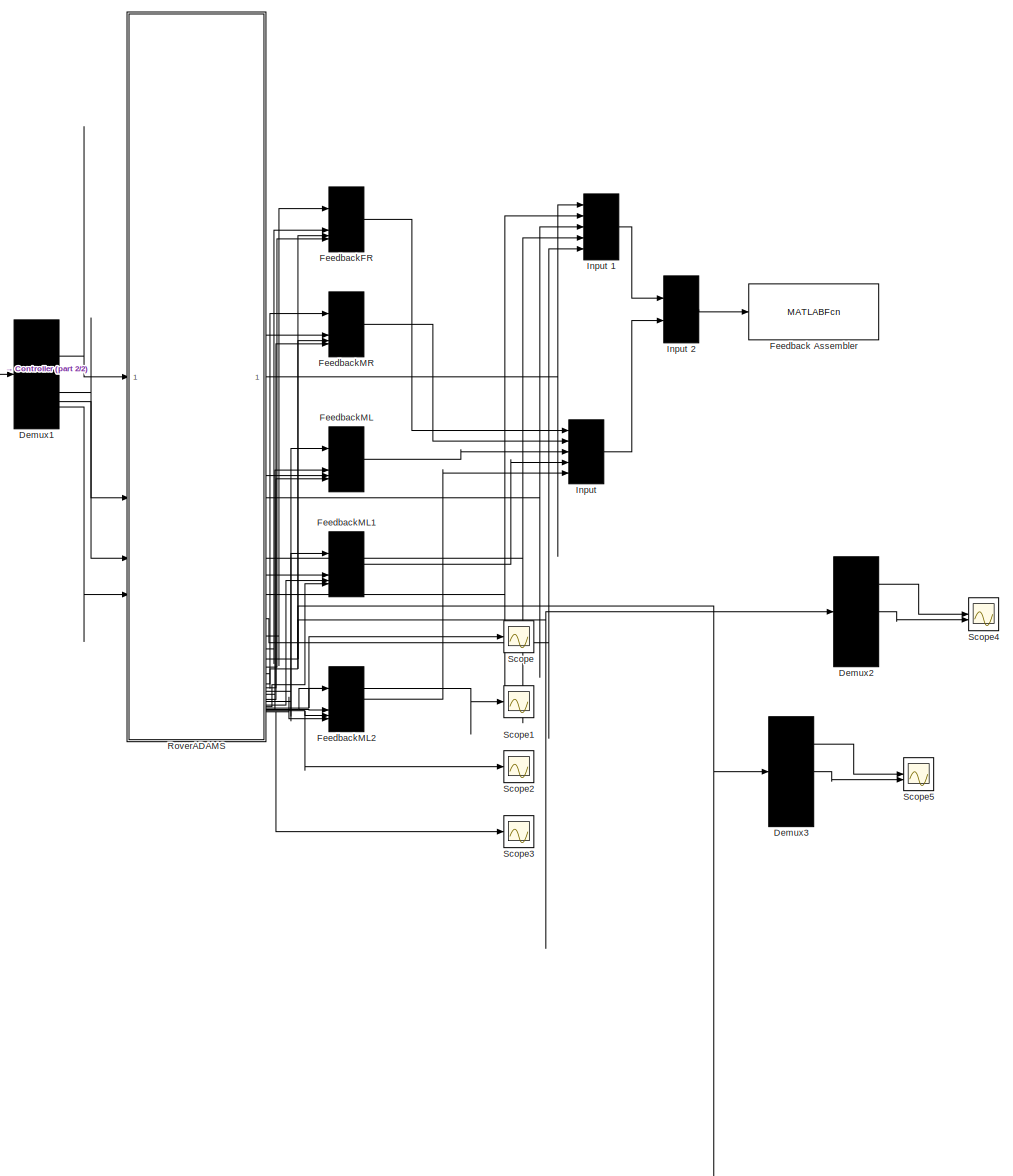
[diagram: root canvas - part 1/2, center side, full height]
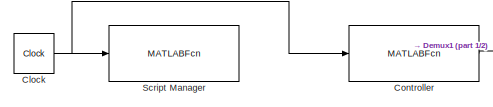
[diagram: root canvas - part 2/2, top left region]
MODEL slx_c310efbba423
KIND model
CONFIG AbsTol = auto
CONFIG EnableMultiTasking = off
CONFIG FixedStep = 0.0002
CONFIG MaxStep = auto
CONFIG MinStep = auto
CONFIG RelTol = 1e-3
CONFIG SampleTimeConstraint = Unconstrained
CONFIG SolverName = ode4
CONFIG StartTime = 0.0
CONFIG StopTime = 10
BLOCK [Clock] Clock
BLOCK [MATLABFcn] Controller
  MATLABFcn = roverControllerScript(u)
  OutputDimensions = 16
BLOCK [Demux] Demux1
  DisplayOption = none
BLOCK [Demux] Demux2
  DisplayOption = none
  Outputs = 3
BLOCK [Demux] Demux3
  DisplayOption = none
  Outputs = 3
BLOCK [MATLABFcn] Feedback Assembler
  MATLABFcn = stateWatcher(u(1:3),u(4:6),u(7:9),u(10:12),u(13:15),u(16:27),u(28:39),u(40:51),u(52:63),u(64:75))
  OutputDimensions = 0
BLOCK [Mux] FeedbackFR
BLOCK [Mux] FeedbackML
BLOCK [Mux] FeedbackML1
BLOCK [Mux] FeedbackML2
BLOCK [Mux] FeedbackMR
BLOCK [Mux] Input 
  Inputs = 5
BLOCK [Mux] Input 1
  Inputs = 5
BLOCK [Mux] Input 2
  Inputs = 2
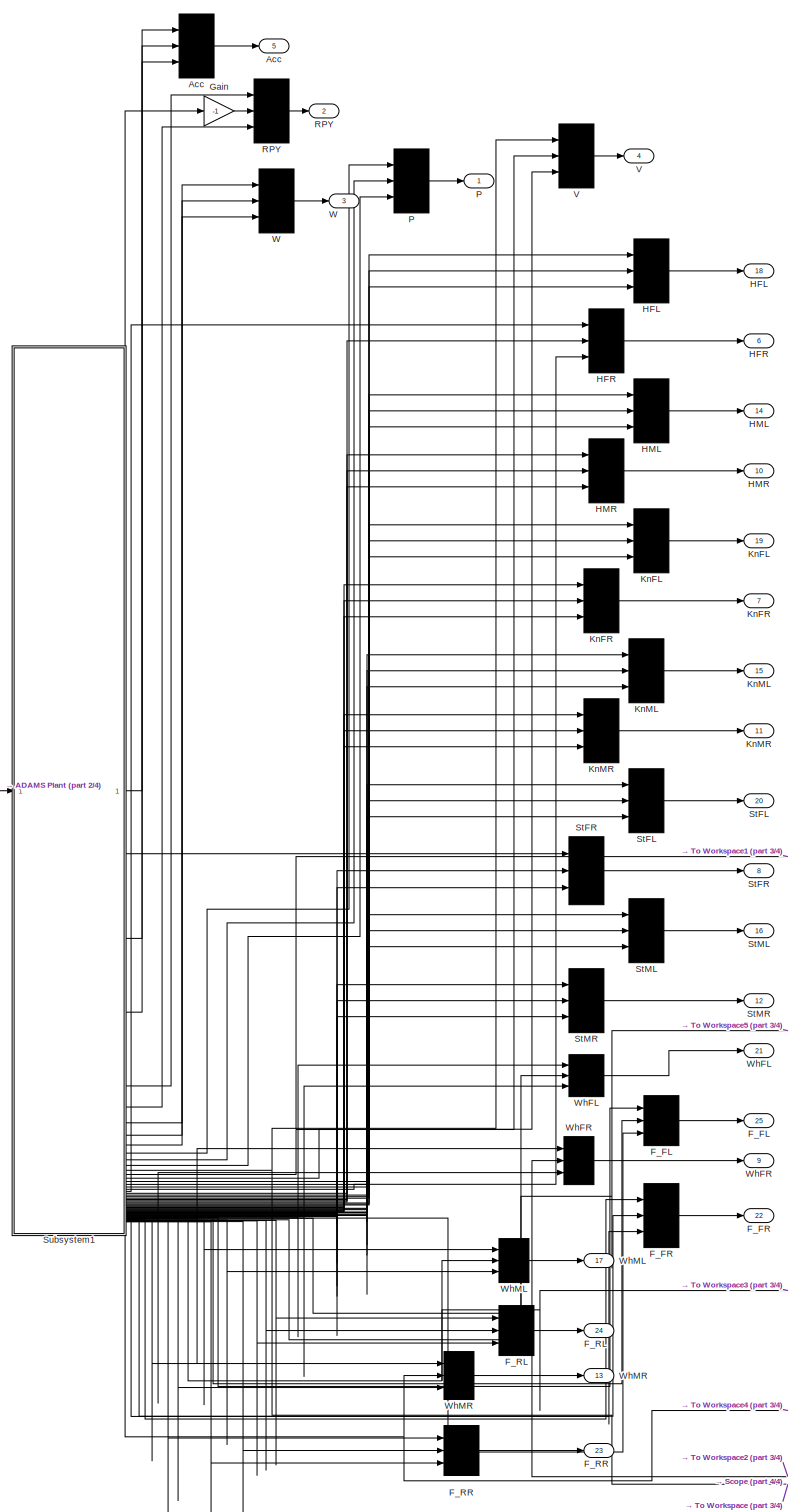
[diagram: RoverADAMS - part 1/4, center side, full height]
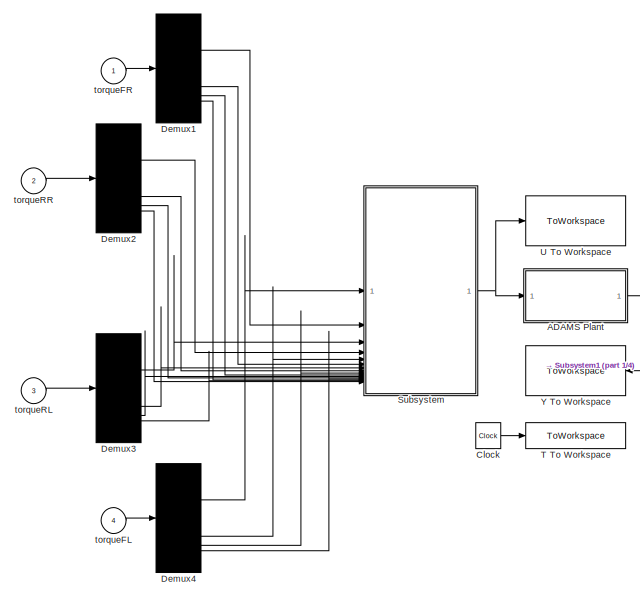
[diagram: RoverADAMS - part 2/4, middle left region]
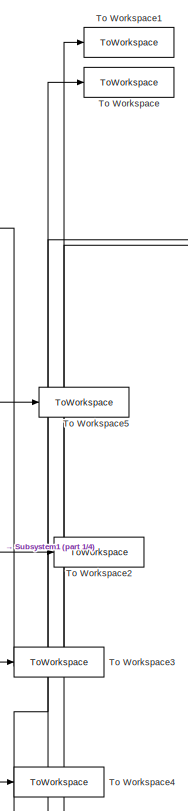
[diagram: RoverADAMS - part 3/4, bottom right region]
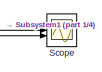
[diagram: RoverADAMS - part 4/4, middle right region]
BLOCK [SubSystem] RoverADAMS
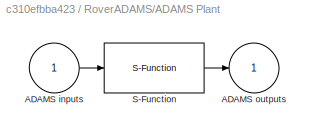
BLOCK [SubSystem] RoverADAMS/ADAMS Plant
  InitFcn = clear mex
  LoadFcn = %check based on dialog box setting for when setting by popup menu                                             \nif exist('ADAMS_solver_type')                                                                                 \n  if strcmp(ADAMS_solver_type,'C++')                                                                          \n    set_param(gcb,'exetyp','C++');                                 ...<+4486ch>
  OpenFcn = open_system(gcb,'mask')                                                                                                                          \nif not(exist('set_some_params_states'))                                                                                                          \n                                                                                                            ...<+625ch>
BLOCK [Inport] RoverADAMS/ADAMS Plant/ADAMS inputs
BLOCK [Outport] RoverADAMS/ADAMS Plant/ADAMS outputs
  InitialOutput = 0
BLOCK [S-Function] RoverADAMS/ADAMS Plant/S-Function
  EnableBusSupport = off
  FunctionName = adams_plant
  Parameters = exevie,exesol,stat,outfil,nampre,o_rate,nam_in,namout,dft,modsim,modani,dt_out,inicmd,exetyp,comtyp,ada_host, workdir,pin_interp_order,pout_extrap_order,pin_extrap_order,pout_interp_order,simulink_lead_cosim
  SFcnIsStateOwnerBlock = off
  SFunctionDeploymentMode = off
  StopFcn = clear mex
BLOCK [Outport] RoverADAMS/Acc
  Port = 5
BLOCK [Mux] RoverADAMS/Acc 
  Inputs = 3
BLOCK [Clock] RoverADAMS/Clock
  Commented = on
BLOCK [Demux] RoverADAMS/Demux1
  DisplayOption = none
BLOCK [Demux] RoverADAMS/Demux2
  DisplayOption = none
BLOCK [Demux] RoverADAMS/Demux3
  DisplayOption = none
BLOCK [Demux] RoverADAMS/Demux4
  DisplayOption = none
BLOCK [Outport] RoverADAMS/F_FL
  Port = 25
BLOCK [Mux] RoverADAMS/F_FL 
  Inputs = 3
BLOCK [Outport] RoverADAMS/F_FR
  Port = 22
BLOCK [Mux] RoverADAMS/F_FR 
  Inputs = 3
BLOCK [Outport] RoverADAMS/F_RL
  Port = 24
BLOCK [Mux] RoverADAMS/F_RL 
  Inputs = 3
BLOCK [Outport] RoverADAMS/F_RR
  Port = 23
BLOCK [Mux] RoverADAMS/F_RR 
  Inputs = 3
BLOCK [Gain] RoverADAMS/Gain
  Gain = -1
BLOCK [Outport] RoverADAMS/HFL
  Port = 18
BLOCK [Mux] RoverADAMS/HFL 
  Inputs = 3
BLOCK [Outport] RoverADAMS/HFR
  Port = 6
BLOCK [Mux] RoverADAMS/HFR 
  Inputs = 3
BLOCK [Outport] RoverADAMS/HML
  Port = 14
BLOCK [Mux] RoverADAMS/HML 
  Inputs = 3
BLOCK [Outport] RoverADAMS/HMR
  Port = 10
BLOCK [Mux] RoverADAMS/HMR 
  Inputs = 3
BLOCK [Outport] RoverADAMS/KnFL
  Port = 19
BLOCK [Mux] RoverADAMS/KnFL 
  Inputs = 3
BLOCK [Outport] RoverADAMS/KnFR
  Port = 7
BLOCK [Mux] RoverADAMS/KnFR 
  Inputs = 3
BLOCK [Outport] RoverADAMS/KnML
  Port = 15
BLOCK [Mux] RoverADAMS/KnML 
  Inputs = 3
BLOCK [Outport] RoverADAMS/KnMR
  Port = 11
BLOCK [Mux] RoverADAMS/KnMR 
  Inputs = 3
BLOCK [Outport] RoverADAMS/P
BLOCK [Mux] RoverADAMS/P 
  Inputs = 3
BLOCK [Outport] RoverADAMS/RPY
  Port = 2
BLOCK [Mux] RoverADAMS/RPY 
  Inputs = 3
BLOCK [Scope] RoverADAMS/Scope
  Floating = off
  NumInputPorts = 2
  ScopeSpecificationString = Simulink.scopes.TimeScopeBlockCfg('CurrentConfiguration', extmgr.ConfigurationSet(extmgr.Configuration('Core','General UI',true),extmgr.Configuration('Core','Source UI',true),extmgr.Configuration('Sources','WiredSimulink',true,'DataLoggingVariableName','ScopeData3'),extmgr.Configuration('Visuals','Time Domain',true,'SerializedDisplays',{struct('MinYLimReal','-0.76514','MaxYLimReal','0.09741','YLab...<+2097ch>
BLOCK [Outport] RoverADAMS/StFL
  Port = 20
BLOCK [Mux] RoverADAMS/StFL 
  Inputs = 3
BLOCK [Outport] RoverADAMS/StFR
  Port = 8
BLOCK [Mux] RoverADAMS/StFR 
  Inputs = 3
BLOCK [Outport] RoverADAMS/StML
  Port = 16
BLOCK [Mux] RoverADAMS/StML 
  Inputs = 3
BLOCK [Outport] RoverADAMS/StMR
  Port = 12
BLOCK [Mux] RoverADAMS/StMR 
  Inputs = 3
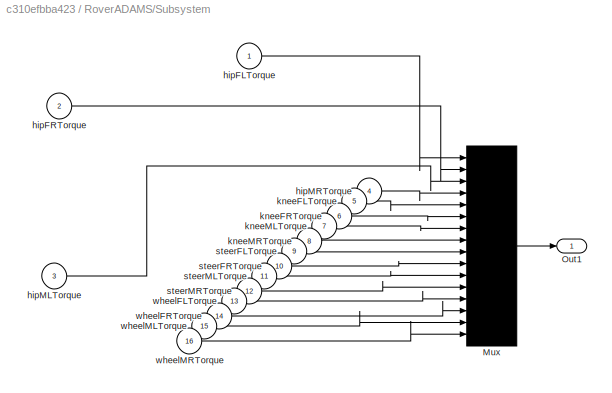
BLOCK [SubSystem] RoverADAMS/Subsystem
BLOCK [Mux] RoverADAMS/Subsystem/Mux
  Inputs = 16
BLOCK [Outport] RoverADAMS/Subsystem/Out1
BLOCK [Inport] RoverADAMS/Subsystem/hipFLTorque  
BLOCK [Inport] RoverADAMS/Subsystem/hipFRTorque  
  Port = 2
BLOCK [Inport] RoverADAMS/Subsystem/hipMLTorque  
  Port = 3
BLOCK [Inport] RoverADAMS/Subsystem/hipMRTorque  
  Port = 4
BLOCK [Inport] RoverADAMS/Subsystem/kneeFLTorque 
  Port = 5
BLOCK [Inport] RoverADAMS/Subsystem/kneeFRTorque 
  Port = 6
BLOCK [Inport] RoverADAMS/Subsystem/kneeMLTorque 
  Port = 7
BLOCK [Inport] RoverADAMS/Subsystem/kneeMRTorque 
  Port = 8
BLOCK [Inport] RoverADAMS/Subsystem/steerFLTorque
  Port = 9
BLOCK [Inport] RoverADAMS/Subsystem/steerFRTorque
  Port = 10
BLOCK [Inport] RoverADAMS/Subsystem/steerMLTorque
  Port = 11
BLOCK [Inport] RoverADAMS/Subsystem/steerMRTorque
  Port = 12
BLOCK [Inport] RoverADAMS/Subsystem/wheelFLTorque
  Port = 13
BLOCK [Inport] RoverADAMS/Subsystem/wheelFRTorque
  Port = 14
BLOCK [Inport] RoverADAMS/Subsystem/wheelMLTorque
  Port = 15
BLOCK [Inport] RoverADAMS/Subsystem/wheelMRTorque
  Port = 16
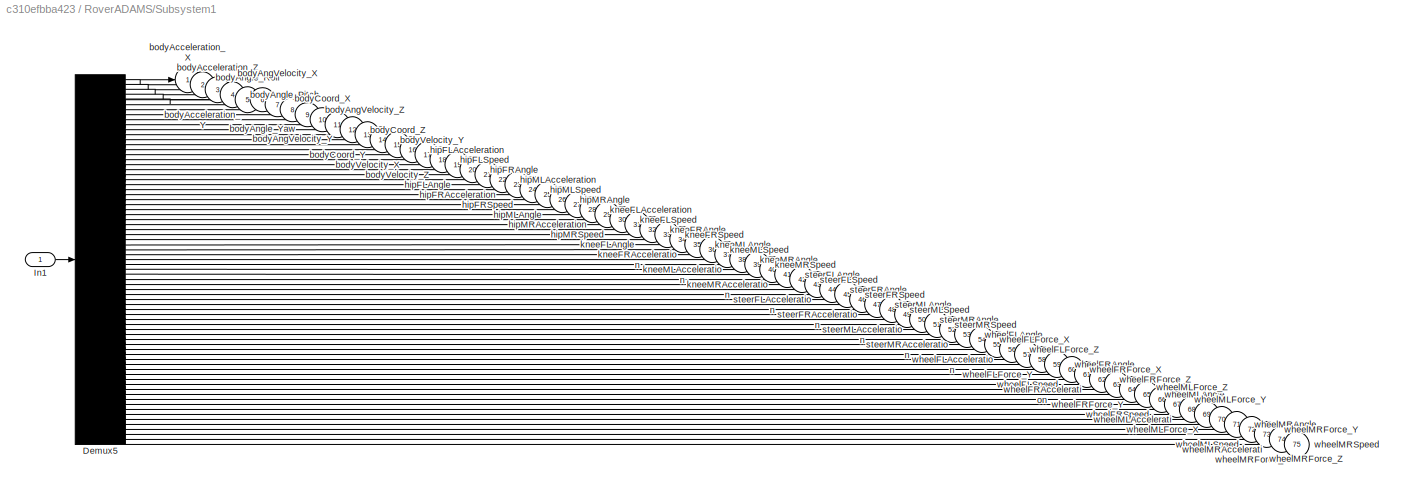
BLOCK [SubSystem] RoverADAMS/Subsystem1
BLOCK [Demux] RoverADAMS/Subsystem1/Demux5
  DisplayOption = none
  Outputs = 75
BLOCK [Inport] RoverADAMS/Subsystem1/In1
BLOCK [Outport] RoverADAMS/Subsystem1/bodyAcceleration_X 
BLOCK [Outport] RoverADAMS/Subsystem1/bodyAcceleration_Y 
  Port = 2
BLOCK [Outport] RoverADAMS/Subsystem1/bodyAcceleration_Z 
  Port = 3
BLOCK [Outport] RoverADAMS/Subsystem1/bodyAngVelocity_X  
  Port = 7
BLOCK [Outport] RoverADAMS/Subsystem1/bodyAngVelocity_Y  
  Port = 8
BLOCK [Outport] RoverADAMS/Subsystem1/bodyAngVelocity_Z  
  Port = 9
BLOCK [Outport] RoverADAMS/Subsystem1/bodyAngle_Pitch    
  Port = 4
BLOCK [Outport] RoverADAMS/Subsystem1/bodyAngle_Roll     
  Port = 5
BLOCK [Outport] RoverADAMS/Subsystem1/bodyAngle_Yaw      
  Port = 6
BLOCK [Outport] RoverADAMS/Subsystem1/bodyCoord_X        
  Port = 10
BLOCK [Outport] RoverADAMS/Subsystem1/bodyCoord_Y        
  Port = 11
BLOCK [Outport] RoverADAMS/Subsystem1/bodyCoord_Z        
  Port = 12
BLOCK [Outport] RoverADAMS/Subsystem1/bodyVelocity_X     
  Port = 13
BLOCK [Outport] RoverADAMS/Subsystem1/bodyVelocity_Y     
  Port = 14
BLOCK [Outport] RoverADAMS/Subsystem1/bodyVelocity_Z     
  Port = 15
BLOCK [Outport] RoverADAMS/Subsystem1/hipFLAcceleration  
  Port = 16
BLOCK [Outport] RoverADAMS/Subsystem1/hipFLAngle         
  Port = 17
BLOCK [Outport] RoverADAMS/Subsystem1/hipFLSpeed         
  Port = 18
BLOCK [Outport] RoverADAMS/Subsystem1/hipFRAcceleration  
  Port = 19
BLOCK [Outport] RoverADAMS/Subsystem1/hipFRAngle         
  Port = 20
BLOCK [Outport] RoverADAMS/Subsystem1/hipFRSpeed         
  Port = 21
BLOCK [Outport] RoverADAMS/Subsystem1/hipMLAcceleration  
  Port = 22
BLOCK [Outport] RoverADAMS/Subsystem1/hipMLAngle         
  Port = 23
BLOCK [Outport] RoverADAMS/Subsystem1/hipMLSpeed         
  Port = 24
BLOCK [Outport] RoverADAMS/Subsystem1/hipMRAcceleration  
  Port = 25
BLOCK [Outport] RoverADAMS/Subsystem1/hipMRAngle         
  Port = 26
BLOCK [Outport] RoverADAMS/Subsystem1/hipMRSpeed         
  Port = 27
BLOCK [Outport] RoverADAMS/Subsystem1/kneeFLAcceleration 
  Port = 28
BLOCK [Outport] RoverADAMS/Subsystem1/kneeFLAngle        
  Port = 29
BLOCK [Outport] RoverADAMS/Subsystem1/kneeFLSpeed        
  Port = 30
BLOCK [Outport] RoverADAMS/Subsystem1/kneeFRAcceleration 
  Port = 31
BLOCK [Outport] RoverADAMS/Subsystem1/kneeFRAngle        
  Port = 32
BLOCK [Outport] RoverADAMS/Subsystem1/kneeFRSpeed        
  Port = 33
BLOCK [Outport] RoverADAMS/Subsystem1/kneeMLAcceleration 
  Port = 34
BLOCK [Outport] RoverADAMS/Subsystem1/kneeMLAngle        
  Port = 35
BLOCK [Outport] RoverADAMS/Subsystem1/kneeMLSpeed        
  Port = 36
BLOCK [Outport] RoverADAMS/Subsystem1/kneeMRAcceleration 
  Port = 37
BLOCK [Outport] RoverADAMS/Subsystem1/kneeMRAngle        
  Port = 38
BLOCK [Outport] RoverADAMS/Subsystem1/kneeMRSpeed        
  Port = 39
BLOCK [Outport] RoverADAMS/Subsystem1/steerFLAcceleration
  Port = 40
BLOCK [Outport] RoverADAMS/Subsystem1/steerFLAngle       
  Port = 41
BLOCK [Outport] RoverADAMS/Subsystem1/steerFLSpeed       
  Port = 42
BLOCK [Outport] RoverADAMS/Subsystem1/steerFRAcceleration
  Port = 43
BLOCK [Outport] RoverADAMS/Subsystem1/steerFRAngle       
  Port = 44
BLOCK [Outport] RoverADAMS/Subsystem1/steerFRSpeed       
  Port = 45
BLOCK [Outport] RoverADAMS/Subsystem1/steerMLAcceleration
  Port = 46
BLOCK [Outport] RoverADAMS/Subsystem1/steerMLAngle       
  Port = 47
BLOCK [Outport] RoverADAMS/Subsystem1/steerMLSpeed       
  Port = 48
BLOCK [Outport] RoverADAMS/Subsystem1/steerMRAcceleration
  Port = 49
BLOCK [Outport] RoverADAMS/Subsystem1/steerMRAngle       
  Port = 50
BLOCK [Outport] RoverADAMS/Subsystem1/steerMRSpeed       
  Port = 51
BLOCK [Outport] RoverADAMS/Subsystem1/wheelFLAcceleration
  Port = 52
BLOCK [Outport] RoverADAMS/Subsystem1/wheelFLAngle       
  Port = 53
BLOCK [Outport] RoverADAMS/Subsystem1/wheelFLForce_X     
  Port = 54
BLOCK [Outport] RoverADAMS/Subsystem1/wheelFLForce_Y     
  Port = 55
BLOCK [Outport] RoverADAMS/Subsystem1/wheelFLForce_Z     
  Port = 56
BLOCK [Outport] RoverADAMS/Subsystem1/wheelFLSpeed       
  Port = 57
BLOCK [Outport] RoverADAMS/Subsystem1/wheelFRAcceleration
  Port = 58
BLOCK [Outport] RoverADAMS/Subsystem1/wheelFRAngle       
  Port = 59
BLOCK [Outport] RoverADAMS/Subsystem1/wheelFRForce_X     
  Port = 60
BLOCK [Outport] RoverADAMS/Subsystem1/wheelFRForce_Y     
  Port = 61
BLOCK [Outport] RoverADAMS/Subsystem1/wheelFRForce_Z     
  Port = 62
BLOCK [Outport] RoverADAMS/Subsystem1/wheelFRSpeed       
  Port = 63
BLOCK [Outport] RoverADAMS/Subsystem1/wheelMLAcceleration
  Port = 64
BLOCK [Outport] RoverADAMS/Subsystem1/wheelMLAngle       
  Port = 65
BLOCK [Outport] RoverADAMS/Subsystem1/wheelMLForce_X     
  Port = 66
BLOCK [Outport] RoverADAMS/Subsystem1/wheelMLForce_Y     
  Port = 67
BLOCK [Outport] RoverADAMS/Subsystem1/wheelMLForce_Z     
  Port = 68
BLOCK [Outport] RoverADAMS/Subsystem1/wheelMLSpeed       
  Port = 69
BLOCK [Outport] RoverADAMS/Subsystem1/wheelMRAcceleration
  Port = 70
BLOCK [Outport] RoverADAMS/Subsystem1/wheelMRAngle       
  Port = 71
BLOCK [Outport] RoverADAMS/Subsystem1/wheelMRForce_X     
  Port = 72
BLOCK [Outport] RoverADAMS/Subsystem1/wheelMRForce_Y     
  Port = 73
BLOCK [Outport] RoverADAMS/Subsystem1/wheelMRForce_Z     
  Port = 74
BLOCK [Outport] RoverADAMS/Subsystem1/wheelMRSpeed       
  Port = 75
BLOCK [ToWorkspace] RoverADAMS/T To Workspace
  Commented = on
  MaxDataPoints = 500
  SampleTime = 0.1
  VariableName = ADAMS_tout
BLOCK [ToWorkspace] RoverADAMS/To Workspace
  FixptAsFi = on
  MaxDataPoints = inf
  SampleTime = -1
  SaveFormat = Timeseries
  VariableName = vX
BLOCK [ToWorkspace] RoverADAMS/To Workspace1
  FixptAsFi = on
  MaxDataPoints = inf
  SampleTime = -1
  SaveFormat = Timeseries
  VariableName = vY
BLOCK [ToWorkspace] RoverADAMS/To Workspace2
  FixptAsFi = on
  MaxDataPoints = inf
  SampleTime = -1
  SaveFormat = Timeseries
  VariableName = wFR
BLOCK [ToWorkspace] RoverADAMS/To Workspace3
  FixptAsFi = on
  MaxDataPoints = inf
  SampleTime = -1
  SaveFormat = Timeseries
  VariableName = wRL
BLOCK [ToWorkspace] RoverADAMS/To Workspace4
  FixptAsFi = on
  MaxDataPoints = inf
  SampleTime = -1
  SaveFormat = Timeseries
  VariableName = wRR
BLOCK [ToWorkspace] RoverADAMS/To Workspace5
  FixptAsFi = on
  MaxDataPoints = inf
  SampleTime = -1
  SaveFormat = Timeseries
  VariableName = wFL
BLOCK [ToWorkspace] RoverADAMS/U To Workspace
  Commented = on
  MaxDataPoints = 500
  SampleTime = 0.1
  VariableName = ADAMS_uout
BLOCK [Outport] RoverADAMS/V
  Port = 4
BLOCK [Mux] RoverADAMS/V 
  Inputs = 3
BLOCK [Outport] RoverADAMS/W
  Port = 3
BLOCK [Mux] RoverADAMS/W 
  Inputs = 3
BLOCK [Outport] RoverADAMS/WhFL
  Port = 21
BLOCK [Mux] RoverADAMS/WhFL 
  Inputs = 3
BLOCK [Outport] RoverADAMS/WhFR
  Port = 9
BLOCK [Mux] RoverADAMS/WhFR 
  Inputs = 3
BLOCK [Outport] RoverADAMS/WhML
  Port = 17
BLOCK [Mux] RoverADAMS/WhML 
  Inputs = 3
BLOCK [Outport] RoverADAMS/WhMR
  Port = 13
BLOCK [Mux] RoverADAMS/WhMR 
  Inputs = 3
BLOCK [ToWorkspace] RoverADAMS/Y To Workspace
  Commented = on
  MaxDataPoints = 500
  SampleTime = 0.1
  VariableName = ADAMS_yout
BLOCK [Inport] RoverADAMS/torqueFL
  Port = 4
BLOCK [Inport] RoverADAMS/torqueFR
BLOCK [Inport] RoverADAMS/torqueRL
  Port = 3
BLOCK [Inport] RoverADAMS/torqueRR
  Port = 2
BLOCK [Scope] Scope
  Floating = off
  NumInputPorts = 1
  ScopeSpecificationString = Simulink.scopes.TimeScopeBlockCfg('CurrentConfiguration', extmgr.ConfigurationSet(extmgr.Configuration('Core','General UI',true),extmgr.Configuration('Core','Source UI',true),extmgr.Configuration('Sources','WiredSimulink',true),extmgr.Configuration('Visuals','Time Domain',true,'SerializedDisplays',{struct('MinYLimReal','-82.22078','MaxYLimReal','514.30419','YLabelReal','','MinYLimMag','0.00000','M...<+1425ch>
BLOCK [Scope] Scope1
  Floating = off
  NumInputPorts = 1
  ScopeSpecificationString = Simulink.scopes.TimeScopeBlockCfg('CurrentConfiguration', extmgr.ConfigurationSet(extmgr.Configuration('Core','General UI',true),extmgr.Configuration('Core','Source UI',true),extmgr.Configuration('Sources','WiredSimulink',true,'DataLoggingVariableName','ScopeData1'),extmgr.Configuration('Visuals','Time Domain',true,'SerializedDisplays',{struct('MinYLimReal','-137.53784','MaxYLimReal','522.29018','...<+1500ch>
BLOCK [Scope] Scope2
  Floating = off
  NumInputPorts = 1
  ScopeSpecificationString = Simulink.scopes.TimeScopeBlockCfg('CurrentConfiguration', extmgr.ConfigurationSet(extmgr.Configuration('Core','General UI',true),extmgr.Configuration('Core','Source UI',true),extmgr.Configuration('Sources','WiredSimulink',true,'DataLoggingVariableName','ScopeData2'),extmgr.Configuration('Visuals','Time Domain',true,'SerializedDisplays',{struct('MinYLimReal','-1.00000','MaxYLimReal','1.00000','YLab...<+1410ch>
BLOCK [Scope] Scope3
  Floating = off
  NumInputPorts = 1
  ScopeSpecificationString = Simulink.scopes.TimeScopeBlockCfg('CurrentConfiguration', extmgr.ConfigurationSet(extmgr.Configuration('Core','General UI',true),extmgr.Configuration('Core','Source UI',true),extmgr.Configuration('Sources','WiredSimulink',true,'DataLoggingVariableName','ScopeData3'),extmgr.Configuration('Visuals','Time Domain',true),extmgr.Configuration('Tools','Plot Navigation',true),extmgr.Configuration('Tools',...<+40ch>
BLOCK [Scope] Scope4
  Floating = off
  NumInputPorts = 2
  ScopeSpecificationString = Simulink.scopes.TimeScopeBlockCfg('CurrentConfiguration', extmgr.ConfigurationSet(extmgr.Configuration('Core','General UI',true),extmgr.Configuration('Core','Source UI',true),extmgr.Configuration('Sources','WiredSimulink',true,'DataLoggingVariableName','ScopeData1'),extmgr.Configuration('Visuals','Time Domain',true,'SerializedDisplays',{struct('MinYLimReal','-0.31523','MaxYLimReal','0.03531','YLab...<+2209ch>
BLOCK [Scope] Scope5
  Floating = off
  NumInputPorts = 2
  ScopeSpecificationString = Simulink.scopes.TimeScopeBlockCfg('CurrentConfiguration', extmgr.ConfigurationSet(extmgr.Configuration('Core','General UI',true),extmgr.Configuration('Core','Source UI',true),extmgr.Configuration('Sources','WiredSimulink',true,'DataLoggingVariableName','ScopeData2'),extmgr.Configuration('Visuals','Time Domain',true,'SerializedDisplays',{struct('MinYLimReal','-0.07335','MaxYLimReal','0.09236','YLab...<+2185ch>
BLOCK [MATLABFcn] Script Manager
  MATLABFcn = roverManager(u(1))
  OutputDimensions = 0
NET Clock:1 -> Controller:1, Script Manager:1
LINE Controller:1 -> Demux1:1
LINE Demux1:1 -> RoverADAMS:1
LINE Demux1:2 -> RoverADAMS:2
LINE Demux1:3 -> RoverADAMS:3
LINE Demux1:4 -> RoverADAMS:4
LINE Demux2:1 -> Scope4:1
LINE Demux2:2 -> Scope4:2
LINE Demux3:1 -> Scope5:1
LINE Demux3:2 -> Scope5:2
LINE FeedbackFR:1 -> Input :1
LINE FeedbackML1:1 -> Input :4
LINE FeedbackML2:1 -> Input :5
LINE FeedbackML:1 -> Input :3
LINE FeedbackMR:1 -> Input :2
LINE Input 1:1 -> Input 2:1
LINE Input 2:1 -> Feedback Assembler:1
LINE Input :1 -> Input 2:2
LINE RoverADAMS/ADAMS Plant/ADAMS inputs:1 -> RoverADAMS/ADAMS Plant/S-Function:1
LINE RoverADAMS/ADAMS Plant/S-Function:1 -> RoverADAMS/ADAMS Plant/ADAMS outputs:1
NET RoverADAMS/ADAMS Plant:1 -> RoverADAMS/Subsystem1:1, RoverADAMS/Y To Workspace:1
LINE RoverADAMS/Acc :1 -> RoverADAMS/Acc:1
LINE RoverADAMS/Clock:1 -> RoverADAMS/T To Workspace:1
LINE RoverADAMS/Demux1:1 -> RoverADAMS/Subsystem:2
LINE RoverADAMS/Demux1:2 -> RoverADAMS/Subsystem:6
LINE RoverADAMS/Demux1:3 -> RoverADAMS/Subsystem:10
LINE RoverADAMS/Demux1:4 -> RoverADAMS/Subsystem:14
LINE RoverADAMS/Demux2:1 -> RoverADAMS/Subsystem:4
LINE RoverADAMS/Demux2:2 -> RoverADAMS/Subsystem:8
LINE RoverADAMS/Demux2:3 -> RoverADAMS/Subsystem:12
LINE RoverADAMS/Demux2:4 -> RoverADAMS/Subsystem:16
LINE RoverADAMS/Demux3:1 -> RoverADAMS/Subsystem:3
LINE RoverADAMS/Demux3:2 -> RoverADAMS/Subsystem:7
LINE RoverADAMS/Demux3:3 -> RoverADAMS/Subsystem:11
LINE RoverADAMS/Demux3:4 -> RoverADAMS/Subsystem:15
LINE RoverADAMS/Demux4:1 -> RoverADAMS/Subsystem:1
LINE RoverADAMS/Demux4:2 -> RoverADAMS/Subsystem:5
LINE RoverADAMS/Demux4:3 -> RoverADAMS/Subsystem:9
LINE RoverADAMS/Demux4:4 -> RoverADAMS/Subsystem:13
LINE RoverADAMS/F_FL :1 -> RoverADAMS/F_FL:1
LINE RoverADAMS/F_FR :1 -> RoverADAMS/F_FR:1
LINE RoverADAMS/F_RL :1 -> RoverADAMS/F_RL:1
LINE RoverADAMS/F_RR :1 -> RoverADAMS/F_RR:1
LINE RoverADAMS/Gain:1 -> RoverADAMS/RPY :2
LINE RoverADAMS/HFL :1 -> RoverADAMS/HFL:1
LINE RoverADAMS/HFR :1 -> RoverADAMS/HFR:1
LINE RoverADAMS/HML :1 -> RoverADAMS/HML:1
LINE RoverADAMS/HMR :1 -> RoverADAMS/HMR:1
LINE RoverADAMS/KnFL :1 -> RoverADAMS/KnFL:1
LINE RoverADAMS/KnFR :1 -> RoverADAMS/KnFR:1
LINE RoverADAMS/KnML :1 -> RoverADAMS/KnML:1
LINE RoverADAMS/KnMR :1 -> RoverADAMS/KnMR:1
LINE RoverADAMS/P :1 -> RoverADAMS/P:1
LINE RoverADAMS/RPY :1 -> RoverADAMS/RPY:1
LINE RoverADAMS/StFL :1 -> RoverADAMS/StFL:1
LINE RoverADAMS/StFR :1 -> RoverADAMS/StFR:1
LINE RoverADAMS/StML :1 -> RoverADAMS/StML:1
LINE RoverADAMS/StMR :1 -> RoverADAMS/StMR:1
LINE RoverADAMS/Subsystem/Mux:1 -> RoverADAMS/Subsystem/Out1:1
LINE RoverADAMS/Subsystem/hipFLTorque  :1 -> RoverADAMS/Subsystem/Mux:1
LINE RoverADAMS/Subsystem/hipFRTorque  :1 -> RoverADAMS/Subsystem/Mux:2
LINE RoverADAMS/Subsystem/hipMLTorque  :1 -> RoverADAMS/Subsystem/Mux:3
LINE RoverADAMS/Subsystem/hipMRTorque  :1 -> RoverADAMS/Subsystem/Mux:4
LINE RoverADAMS/Subsystem/kneeFLTorque :1 -> RoverADAMS/Subsystem/Mux:5
LINE RoverADAMS/Subsystem/kneeFRTorque :1 -> RoverADAMS/Subsystem/Mux:6
LINE RoverADAMS/Subsystem/kneeMLTorque :1 -> RoverADAMS/Subsystem/Mux:7
LINE RoverADAMS/Subsystem/kneeMRTorque :1 -> RoverADAMS/Subsystem/Mux:8
LINE RoverADAMS/Subsystem/steerFLTorque:1 -> RoverADAMS/Subsystem/Mux:9
LINE RoverADAMS/Subsystem/steerFRTorque:1 -> RoverADAMS/Subsystem/Mux:10
LINE RoverADAMS/Subsystem/steerMLTorque:1 -> RoverADAMS/Subsystem/Mux:11
LINE RoverADAMS/Subsystem/steerMRTorque:1 -> RoverADAMS/Subsystem/Mux:12
LINE RoverADAMS/Subsystem/wheelFLTorque:1 -> RoverADAMS/Subsystem/Mux:13
LINE RoverADAMS/Subsystem/wheelFRTorque:1 -> RoverADAMS/Subsystem/Mux:14
LINE RoverADAMS/Subsystem/wheelMLTorque:1 -> RoverADAMS/Subsystem/Mux:15
LINE RoverADAMS/Subsystem/wheelMRTorque:1 -> RoverADAMS/Subsystem/Mux:16
LINE RoverADAMS/Subsystem1/Demux5:1 -> RoverADAMS/Subsystem1/bodyAcceleration_X :1
LINE RoverADAMS/Subsystem1/Demux5:10 -> RoverADAMS/Subsystem1/bodyCoord_X        :1
LINE RoverADAMS/Subsystem1/Demux5:11 -> RoverADAMS/Subsystem1/bodyCoord_Y        :1
LINE RoverADAMS/Subsystem1/Demux5:12 -> RoverADAMS/Subsystem1/bodyCoord_Z        :1
LINE RoverADAMS/Subsystem1/Demux5:13 -> RoverADAMS/Subsystem1/bodyVelocity_X     :1
LINE RoverADAMS/Subsystem1/Demux5:14 -> RoverADAMS/Subsystem1/bodyVelocity_Y     :1
LINE RoverADAMS/Subsystem1/Demux5:15 -> RoverADAMS/Subsystem1/bodyVelocity_Z     :1
LINE RoverADAMS/Subsystem1/Demux5:16 -> RoverADAMS/Subsystem1/hipFLAcceleration  :1
LINE RoverADAMS/Subsystem1/Demux5:17 -> RoverADAMS/Subsystem1/hipFLAngle         :1
LINE RoverADAMS/Subsystem1/Demux5:18 -> RoverADAMS/Subsystem1/hipFLSpeed         :1
LINE RoverADAMS/Subsystem1/Demux5:19 -> RoverADAMS/Subsystem1/hipFRAcceleration  :1
LINE RoverADAMS/Subsystem1/Demux5:2 -> RoverADAMS/Subsystem1/bodyAcceleration_Y :1
LINE RoverADAMS/Subsystem1/Demux5:20 -> RoverADAMS/Subsystem1/hipFRAngle         :1
LINE RoverADAMS/Subsystem1/Demux5:21 -> RoverADAMS/Subsystem1/hipFRSpeed         :1
LINE RoverADAMS/Subsystem1/Demux5:22 -> RoverADAMS/Subsystem1/hipMLAcceleration  :1
LINE RoverADAMS/Subsystem1/Demux5:23 -> RoverADAMS/Subsystem1/hipMLAngle         :1
LINE RoverADAMS/Subsystem1/Demux5:24 -> RoverADAMS/Subsystem1/hipMLSpeed         :1
LINE RoverADAMS/Subsystem1/Demux5:25 -> RoverADAMS/Subsystem1/hipMRAcceleration  :1
LINE RoverADAMS/Subsystem1/Demux5:26 -> RoverADAMS/Subsystem1/hipMRAngle         :1
LINE RoverADAMS/Subsystem1/Demux5:27 -> RoverADAMS/Subsystem1/hipMRSpeed         :1
LINE RoverADAMS/Subsystem1/Demux5:28 -> RoverADAMS/Subsystem1/kneeFLAcceleration :1
LINE RoverADAMS/Subsystem1/Demux5:29 -> RoverADAMS/Subsystem1/kneeFLAngle        :1
LINE RoverADAMS/Subsystem1/Demux5:3 -> RoverADAMS/Subsystem1/bodyAcceleration_Z :1
LINE RoverADAMS/Subsystem1/Demux5:30 -> RoverADAMS/Subsystem1/kneeFLSpeed        :1
LINE RoverADAMS/Subsystem1/Demux5:31 -> RoverADAMS/Subsystem1/kneeFRAcceleration :1
LINE RoverADAMS/Subsystem1/Demux5:32 -> RoverADAMS/Subsystem1/kneeFRAngle        :1
LINE RoverADAMS/Subsystem1/Demux5:33 -> RoverADAMS/Subsystem1/kneeFRSpeed        :1
LINE RoverADAMS/Subsystem1/Demux5:34 -> RoverADAMS/Subsystem1/kneeMLAcceleration :1
LINE RoverADAMS/Subsystem1/Demux5:35 -> RoverADAMS/Subsystem1/kneeMLAngle        :1
LINE RoverADAMS/Subsystem1/Demux5:36 -> RoverADAMS/Subsystem1/kneeMLSpeed        :1
LINE RoverADAMS/Subsystem1/Demux5:37 -> RoverADAMS/Subsystem1/kneeMRAcceleration :1
LINE RoverADAMS/Subsystem1/Demux5:38 -> RoverADAMS/Subsystem1/kneeMRAngle        :1
LINE RoverADAMS/Subsystem1/Demux5:39 -> RoverADAMS/Subsystem1/kneeMRSpeed        :1
LINE RoverADAMS/Subsystem1/Demux5:4 -> RoverADAMS/Subsystem1/bodyAngle_Pitch    :1
LINE RoverADAMS/Subsystem1/Demux5:40 -> RoverADAMS/Subsystem1/steerFLAcceleration:1
LINE RoverADAMS/Subsystem1/Demux5:41 -> RoverADAMS/Subsystem1/steerFLAngle       :1
LINE RoverADAMS/Subsystem1/Demux5:42 -> RoverADAMS/Subsystem1/steerFLSpeed       :1
LINE RoverADAMS/Subsystem1/Demux5:43 -> RoverADAMS/Subsystem1/steerFRAcceleration:1
LINE RoverADAMS/Subsystem1/Demux5:44 -> RoverADAMS/Subsystem1/steerFRAngle       :1
LINE RoverADAMS/Subsystem1/Demux5:45 -> RoverADAMS/Subsystem1/steerFRSpeed       :1
LINE RoverADAMS/Subsystem1/Demux5:46 -> RoverADAMS/Subsystem1/steerMLAcceleration:1
LINE RoverADAMS/Subsystem1/Demux5:47 -> RoverADAMS/Subsystem1/steerMLAngle       :1
LINE RoverADAMS/Subsystem1/Demux5:48 -> RoverADAMS/Subsystem1/steerMLSpeed       :1
LINE RoverADAMS/Subsystem1/Demux5:49 -> RoverADAMS/Subsystem1/steerMRAcceleration:1
LINE RoverADAMS/Subsystem1/Demux5:5 -> RoverADAMS/Subsystem1/bodyAngle_Roll     :1
LINE RoverADAMS/Subsystem1/Demux5:50 -> RoverADAMS/Subsystem1/steerMRAngle       :1
LINE RoverADAMS/Subsystem1/Demux5:51 -> RoverADAMS/Subsystem1/steerMRSpeed       :1
LINE RoverADAMS/Subsystem1/Demux5:52 -> RoverADAMS/Subsystem1/wheelFLAcceleration:1
LINE RoverADAMS/Subsystem1/Demux5:53 -> RoverADAMS/Subsystem1/wheelFLAngle       :1
LINE RoverADAMS/Subsystem1/Demux5:54 -> RoverADAMS/Subsystem1/wheelFLForce_X     :1
LINE RoverADAMS/Subsystem1/Demux5:55 -> RoverADAMS/Subsystem1/wheelFLForce_Y     :1
LINE RoverADAMS/Subsystem1/Demux5:56 -> RoverADAMS/Subsystem1/wheelFLForce_Z     :1
LINE RoverADAMS/Subsystem1/Demux5:57 -> RoverADAMS/Subsystem1/wheelFLSpeed       :1
LINE RoverADAMS/Subsystem1/Demux5:58 -> RoverADAMS/Subsystem1/wheelFRAcceleration:1
LINE RoverADAMS/Subsystem1/Demux5:59 -> RoverADAMS/Subsystem1/wheelFRAngle       :1
LINE RoverADAMS/Subsystem1/Demux5:6 -> RoverADAMS/Subsystem1/bodyAngle_Yaw      :1
LINE RoverADAMS/Subsystem1/Demux5:60 -> RoverADAMS/Subsystem1/wheelFRForce_X     :1
LINE RoverADAMS/Subsystem1/Demux5:61 -> RoverADAMS/Subsystem1/wheelFRForce_Y     :1
LINE RoverADAMS/Subsystem1/Demux5:62 -> RoverADAMS/Subsystem1/wheelFRForce_Z     :1
LINE RoverADAMS/Subsystem1/Demux5:63 -> RoverADAMS/Subsystem1/wheelFRSpeed       :1
LINE RoverADAMS/Subsystem1/Demux5:64 -> RoverADAMS/Subsystem1/wheelMLAcceleration:1
LINE RoverADAMS/Subsystem1/Demux5:65 -> RoverADAMS/Subsystem1/wheelMLAngle       :1
LINE RoverADAMS/Subsystem1/Demux5:66 -> RoverADAMS/Subsystem1/wheelMLForce_X     :1
LINE RoverADAMS/Subsystem1/Demux5:67 -> RoverADAMS/Subsystem1/wheelMLForce_Y     :1
LINE RoverADAMS/Subsystem1/Demux5:68 -> RoverADAMS/Subsystem1/wheelMLForce_Z     :1
LINE RoverADAMS/Subsystem1/Demux5:69 -> RoverADAMS/Subsystem1/wheelMLSpeed       :1
LINE RoverADAMS/Subsystem1/Demux5:7 -> RoverADAMS/Subsystem1/bodyAngVelocity_X  :1
LINE RoverADAMS/Subsystem1/Demux5:70 -> RoverADAMS/Subsystem1/wheelMRAcceleration:1
LINE RoverADAMS/Subsystem1/Demux5:71 -> RoverADAMS/Subsystem1/wheelMRAngle       :1
LINE RoverADAMS/Subsystem1/Demux5:72 -> RoverADAMS/Subsystem1/wheelMRForce_X     :1
LINE RoverADAMS/Subsystem1/Demux5:73 -> RoverADAMS/Subsystem1/wheelMRForce_Y     :1
LINE RoverADAMS/Subsystem1/Demux5:74 -> RoverADAMS/Subsystem1/wheelMRForce_Z     :1
LINE RoverADAMS/Subsystem1/Demux5:75 -> RoverADAMS/Subsystem1/wheelMRSpeed       :1
LINE RoverADAMS/Subsystem1/Demux5:8 -> RoverADAMS/Subsystem1/bodyAngVelocity_Y  :1
LINE RoverADAMS/Subsystem1/Demux5:9 -> RoverADAMS/Subsystem1/bodyAngVelocity_Z  :1
LINE RoverADAMS/Subsystem1/In1:1 -> RoverADAMS/Subsystem1/Demux5:1
LINE RoverADAMS/Subsystem1:1 -> RoverADAMS/Acc :1
LINE RoverADAMS/Subsystem1:10 -> RoverADAMS/P :1
LINE RoverADAMS/Subsystem1:11 -> RoverADAMS/P :2
LINE RoverADAMS/Subsystem1:12 -> RoverADAMS/P :3
NET RoverADAMS/Subsystem1:13 -> RoverADAMS/Scope:1, RoverADAMS/To Workspace:1, RoverADAMS/V :1
NET RoverADAMS/Subsystem1:14 -> RoverADAMS/Scope:2, RoverADAMS/To Workspace1:1, RoverADAMS/V :2
LINE RoverADAMS/Subsystem1:15 -> RoverADAMS/V :3
LINE RoverADAMS/Subsystem1:16 -> RoverADAMS/HFL :3
LINE RoverADAMS/Subsystem1:17 -> RoverADAMS/HFL :1
LINE RoverADAMS/Subsystem1:18 -> RoverADAMS/HFL :2
LINE RoverADAMS/Subsystem1:19 -> RoverADAMS/HFR :3
LINE RoverADAMS/Subsystem1:2 -> RoverADAMS/Acc :2
LINE RoverADAMS/Subsystem1:20 -> RoverADAMS/HFR :1
LINE RoverADAMS/Subsystem1:21 -> RoverADAMS/HFR :2
LINE RoverADAMS/Subsystem1:22 -> RoverADAMS/HML :3
LINE RoverADAMS/Subsystem1:23 -> RoverADAMS/HML :1
LINE RoverADAMS/Subsystem1:24 -> RoverADAMS/HML :2
LINE RoverADAMS/Subsystem1:25 -> RoverADAMS/HMR :3
LINE RoverADAMS/Subsystem1:26 -> RoverADAMS/HMR :1
LINE RoverADAMS/Subsystem1:27 -> RoverADAMS/HMR :2
LINE RoverADAMS/Subsystem1:28 -> RoverADAMS/KnFL :3
LINE RoverADAMS/Subsystem1:29 -> RoverADAMS/KnFL :1
LINE RoverADAMS/Subsystem1:3 -> RoverADAMS/Acc :3
LINE RoverADAMS/Subsystem1:30 -> RoverADAMS/KnFL :2
LINE RoverADAMS/Subsystem1:31 -> RoverADAMS/KnFR :3
LINE RoverADAMS/Subsystem1:32 -> RoverADAMS/KnFR :1
LINE RoverADAMS/Subsystem1:33 -> RoverADAMS/KnFR :2
LINE RoverADAMS/Subsystem1:34 -> RoverADAMS/KnML :3
LINE RoverADAMS/Subsystem1:35 -> RoverADAMS/KnML :1
LINE RoverADAMS/Subsystem1:36 -> RoverADAMS/KnML :2
LINE RoverADAMS/Subsystem1:37 -> RoverADAMS/KnMR :3
LINE RoverADAMS/Subsystem1:38 -> RoverADAMS/KnMR :1
LINE RoverADAMS/Subsystem1:39 -> RoverADAMS/KnMR :2
LINE RoverADAMS/Subsystem1:4 -> RoverADAMS/Gain:1
LINE RoverADAMS/Subsystem1:40 -> RoverADAMS/StFL :3
LINE RoverADAMS/Subsystem1:41 -> RoverADAMS/StFL :1
LINE RoverADAMS/Subsystem1:42 -> RoverADAMS/StFL :2
LINE RoverADAMS/Subsystem1:43 -> RoverADAMS/StFR :3
LINE RoverADAMS/Subsystem1:44 -> RoverADAMS/StFR :1
LINE RoverADAMS/Subsystem1:45 -> RoverADAMS/StFR :2
LINE RoverADAMS/Subsystem1:46 -> RoverADAMS/StML :3
LINE RoverADAMS/Subsystem1:47 -> RoverADAMS/StML :1
LINE RoverADAMS/Subsystem1:48 -> RoverADAMS/StML :2
LINE RoverADAMS/Subsystem1:49 -> RoverADAMS/StMR :3
LINE RoverADAMS/Subsystem1:5 -> RoverADAMS/RPY :1
LINE RoverADAMS/Subsystem1:50 -> RoverADAMS/StMR :1
LINE RoverADAMS/Subsystem1:51 -> RoverADAMS/StMR :2
LINE RoverADAMS/Subsystem1:52 -> RoverADAMS/WhFL :3
LINE RoverADAMS/Subsystem1:53 -> RoverADAMS/WhFL :1
LINE RoverADAMS/Subsystem1:54 -> RoverADAMS/F_FL :1
LINE RoverADAMS/Subsystem1:55 -> RoverADAMS/F_FL :2
LINE RoverADAMS/Subsystem1:56 -> RoverADAMS/F_FL :3
NET RoverADAMS/Subsystem1:57 -> RoverADAMS/To Workspace5:1, RoverADAMS/WhFL :2
LINE RoverADAMS/Subsystem1:58 -> RoverADAMS/WhFR :3
LINE RoverADAMS/Subsystem1:59 -> RoverADAMS/WhFR :1
LINE RoverADAMS/Subsystem1:6 -> RoverADAMS/RPY :3
LINE RoverADAMS/Subsystem1:60 -> RoverADAMS/F_FR :1
LINE RoverADAMS/Subsystem1:61 -> RoverADAMS/F_FR :2
LINE RoverADAMS/Subsystem1:62 -> RoverADAMS/F_FR :3
NET RoverADAMS/Subsystem1:63 -> RoverADAMS/To Workspace2:1, RoverADAMS/WhFR :2
LINE RoverADAMS/Subsystem1:64 -> RoverADAMS/WhML :3
LINE RoverADAMS/Subsystem1:65 -> RoverADAMS/WhML :1
LINE RoverADAMS/Subsystem1:66 -> RoverADAMS/F_RL :1
LINE RoverADAMS/Subsystem1:67 -> RoverADAMS/F_RL :2
LINE RoverADAMS/Subsystem1:68 -> RoverADAMS/F_RL :3
NET RoverADAMS/Subsystem1:69 -> RoverADAMS/To Workspace3:1, RoverADAMS/WhML :2
LINE RoverADAMS/Subsystem1:7 -> RoverADAMS/W :1
LINE RoverADAMS/Subsystem1:70 -> RoverADAMS/WhMR :3
LINE RoverADAMS/Subsystem1:71 -> RoverADAMS/WhMR :1
LINE RoverADAMS/Subsystem1:72 -> RoverADAMS/F_RR :1
LINE RoverADAMS/Subsystem1:73 -> RoverADAMS/F_RR :2
LINE RoverADAMS/Subsystem1:74 -> RoverADAMS/F_RR :3
NET RoverADAMS/Subsystem1:75 -> RoverADAMS/To Workspace4:1, RoverADAMS/WhMR :2
LINE RoverADAMS/Subsystem1:8 -> RoverADAMS/W :2
LINE RoverADAMS/Subsystem1:9 -> RoverADAMS/W :3
NET RoverADAMS/Subsystem:1 -> RoverADAMS/ADAMS Plant:1, RoverADAMS/U To Workspace:1
LINE RoverADAMS/V :1 -> RoverADAMS/V:1
LINE RoverADAMS/W :1 -> RoverADAMS/W:1
LINE RoverADAMS/WhFL :1 -> RoverADAMS/WhFL:1
LINE RoverADAMS/WhFR :1 -> RoverADAMS/WhFR:1
LINE RoverADAMS/WhML :1 -> RoverADAMS/WhML:1
LINE RoverADAMS/WhMR :1 -> RoverADAMS/WhMR:1
LINE RoverADAMS/torqueFL:1 -> RoverADAMS/Demux4:1
LINE RoverADAMS/torqueFR:1 -> RoverADAMS/Demux1:1
LINE RoverADAMS/torqueRL:1 -> RoverADAMS/Demux3:1
LINE RoverADAMS/torqueRR:1 -> RoverADAMS/Demux2:1
LINE RoverADAMS:1 -> Input 1:1
LINE RoverADAMS:10 -> FeedbackMR:1
LINE RoverADAMS:11 -> FeedbackMR:2
NET RoverADAMS:12 -> Demux2:1, FeedbackMR:3
LINE RoverADAMS:13 -> FeedbackMR:4
LINE RoverADAMS:14 -> FeedbackML:1
LINE RoverADAMS:15 -> FeedbackML:2
LINE RoverADAMS:16 -> FeedbackML:3
LINE RoverADAMS:17 -> FeedbackML:4
LINE RoverADAMS:18 -> FeedbackML1:1
LINE RoverADAMS:19 -> FeedbackML1:2
LINE RoverADAMS:2 -> Input 1:3
LINE RoverADAMS:20 -> FeedbackML1:3
LINE RoverADAMS:21 -> FeedbackML1:4
NET RoverADAMS:22 -> FeedbackML2:1, Scope:1
NET RoverADAMS:23 -> FeedbackML2:2, Scope1:1
NET RoverADAMS:24 -> FeedbackML2:3, Scope2:1
NET RoverADAMS:25 -> FeedbackML2:4, Scope3:1
LINE RoverADAMS:3 -> Input 1:4
LINE RoverADAMS:4 -> Input 1:2
LINE RoverADAMS:5 -> Input 1:5
LINE RoverADAMS:6 -> FeedbackFR:1
LINE RoverADAMS:7 -> FeedbackFR:2
NET RoverADAMS:8 -> Demux3:1, FeedbackFR:3
LINE RoverADAMS:9 -> FeedbackFR:4
note: NET lines group one-source signal fan-out (src -> all destinations, sorted); 1:1 wires keep LINE
